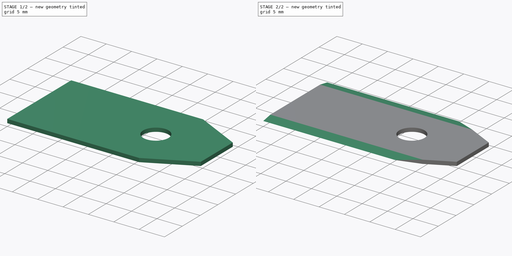
[diagram: build sequence overview — one tinted view per stage of 2, left to right]
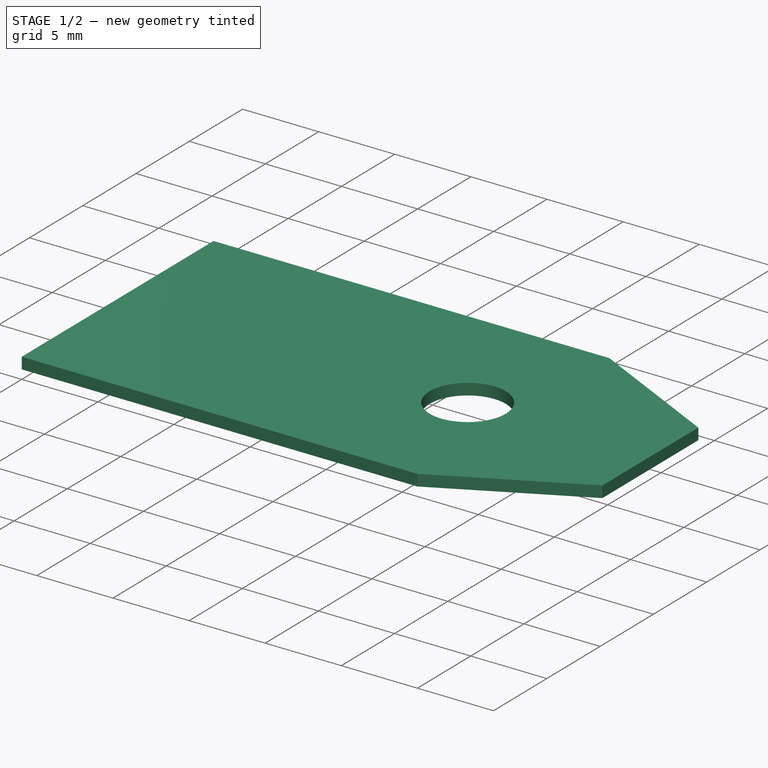
[diagram: stage 1 of 2 — iso view after this stage's code; geometry added in this stage tinted green]
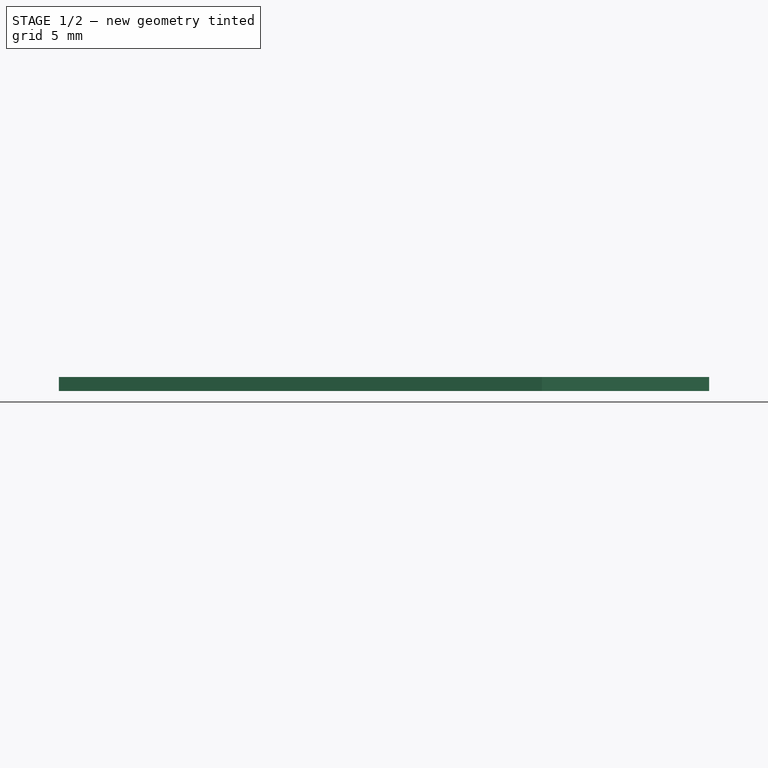
[diagram: stage 1 of 2 — front view after this stage's code; geometry added in this stage tinted green]
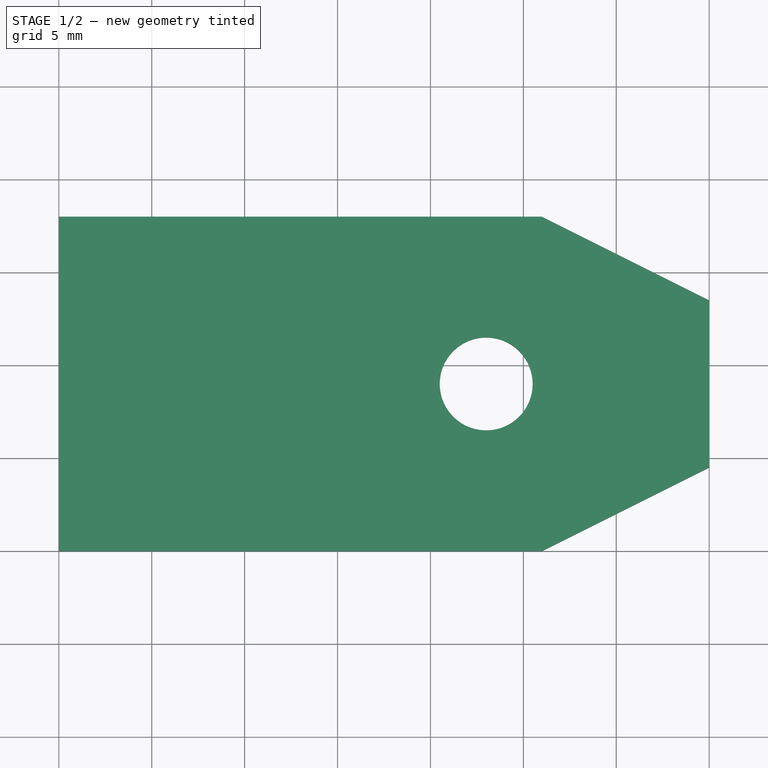
[diagram: stage 1 of 2 — top view after this stage's code; geometry added in this stage tinted green]
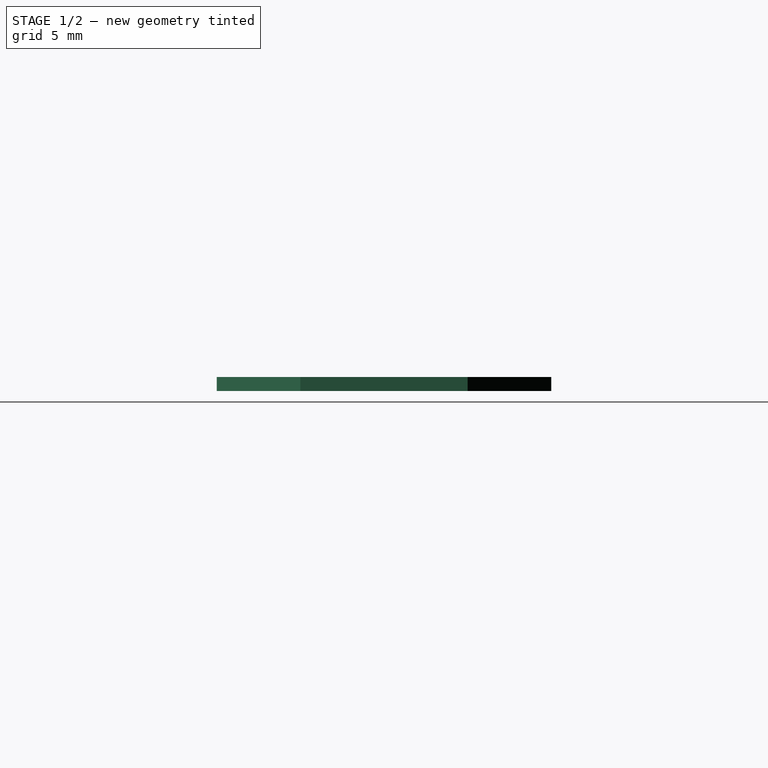
[diagram: stage 1 of 2 — right view after this stage's code; geometry added in this stage tinted green]
FCSTD DOCUMENT  (FreeCAD 1.1R1.1.0)
Label: Blades
License: All rights reserved
LicenseURL: http://en.wikipedia.org/wiki/All_rights_reserved
objects: Sketcher::SketchObject×3, PartDesign::Pocket×2, App::Point×1, PartDesign::Pad×1, PartDesign::Body×1
note: 16 computed .brp shape members not serialized (recipe doc carries the construction recipe); baked Part::Feature solids carry a one-line shape summary decoded from their .brp

FEATURE [App::Point] Origin001
  Role = Origin
FEATURE [Sketcher::SketchObject] Sketch  label="MainBladeShape_Sketch"
  ArcFitTolerance = 1e-06
  AttachmentSupport = -> [Origin]
  ExternalTypes = [0]
  FullyConstrained = true
  MakeInternals = false
  MapMode = 5
  Tolerance = 0
  _ExternalGeoVersion = 1
  expr: Constraints[11] = 18 mm + Tolerance
  expr: Constraints[12] = 35 mm + Tolerance
  expr: Constraints[13] = 26 mm + Tolerance
  expr: Constraints[15] = 9 mm + Tolerance
  expr: Constraints[16] = (18 mm + Tolerance - (9 mm + Tolerance)) / 2
  sketch-geometry (6):
    g0: LineSegment StartX=0 StartY=0 StartZ=0 EndX=0 EndY=18 EndZ=0
    g1: LineSegment StartX=0 StartY=18 StartZ=0 EndX=26 EndY=18 EndZ=0
    g2: LineSegment StartX=26 StartY=18 StartZ=0 EndX=35 EndY=13.5 EndZ=0
    g3: LineSegment StartX=35 StartY=13.5 StartZ=0 EndX=35 EndY=4.5 EndZ=0
    g4: LineSegment StartX=35 StartY=4.5 StartZ=0 EndX=26 EndY=0 EndZ=0
    g5: LineSegment StartX=26 StartY=0 StartZ=0 EndX=0 EndY=0 EndZ=0
  constraints (17):
    c: Coincident(g-1,g0)
    c: PointOnObject(g0,g-2)
    c: Coincident(g0,g1)
    c: Horizontal(g1)
    c: Coincident(g1,g2)
    c: Coincident(g2,g3)
    c: Vertical(g3)
    c: Coincident(g3,g4)
    c: PointOnObject(g4,g-1)
    c: Coincident(g4,g5)
    c: Coincident(g5,g0)
    c: DistanceY(g0,g0) = 18
    c: DistanceX(g0,g2) = 35
    c: DistanceX(g1,g1) = 26
    c: Equal(g1,g5)
    c: DistanceY(g3,g3) = 9
    c: DistanceY(g0,g3) = 4.5
FEATURE [PartDesign::Pad] Pad
  Direction = (0,0,1)
  Length = 0.75
  Length2 = 10
  Profile = -> Sketch
  ReferenceAxis = -> Sketch [N_Axis]
  SideType = 0
  Suppressed = false
  Type = 0
  Type2 = 0
  expr: Length = 0.75 mm + <<MainBladeShape_Sketch>>.Tolerance
FEATURE [Sketcher::SketchObject] Sketch001
  ArcFitTolerance = 1e-06
  AttachmentSupport = -> [Pad]
  ExternalTypes = [0]
  FullyConstrained = true
  MakeInternals = false
  MapMode = 5
  Placement = pos=(0,0,0.75) rot=(0,0,1;0rad)
  _ExternalGeoVersion = 1
  expr: Constraints[2] = (18 mm + <<MainBladeShape_Sketch>>.Tolerance) / 2
  sketch-geometry (1):
    g0: Circle CenterX=23 CenterY=9 CenterZ=0 NormalX=0 NormalY=0 NormalZ=1 AngleXU=0 Radius=2.5
  constraints (3):
    c: Diameter(g0) = 5
    c: DistanceX(g-1,g0) = 23
    c: DistanceY(g-1,g0) = 9
FEATURE [PartDesign::Pocket] Pocket
  BaseFeature = -> Pad
  Direction = (0,0,-1)
  Length = 5
  Length2 = 5
  Profile = -> Sketch001
  ReferenceAxis = -> Sketch001 [N_Axis]
  SideType = 0
  Suppressed = false
  Type = 1
  Type2 = 0
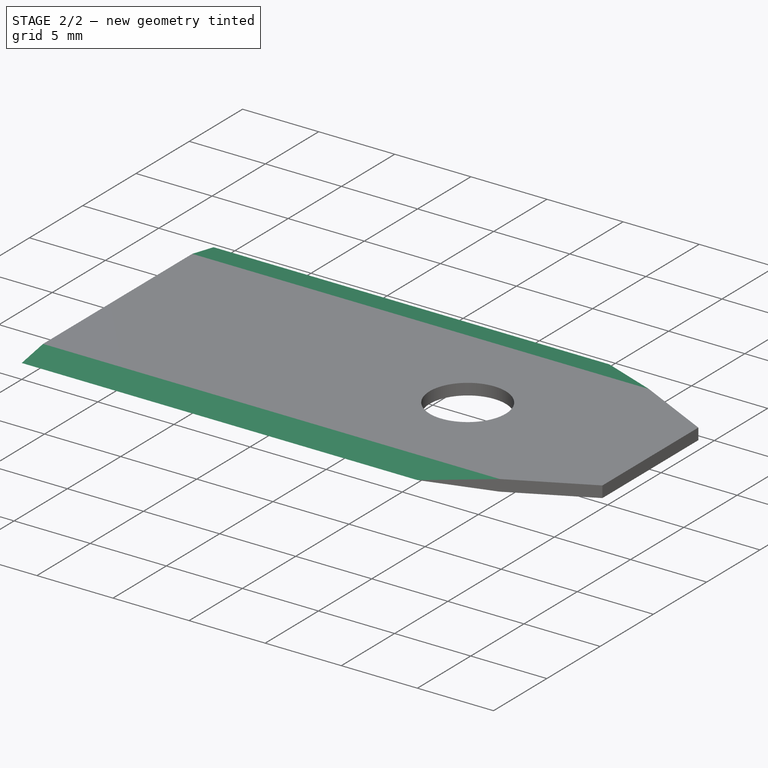
[diagram: stage 2 of 2 — iso view after this stage's code; geometry added in this stage tinted green]
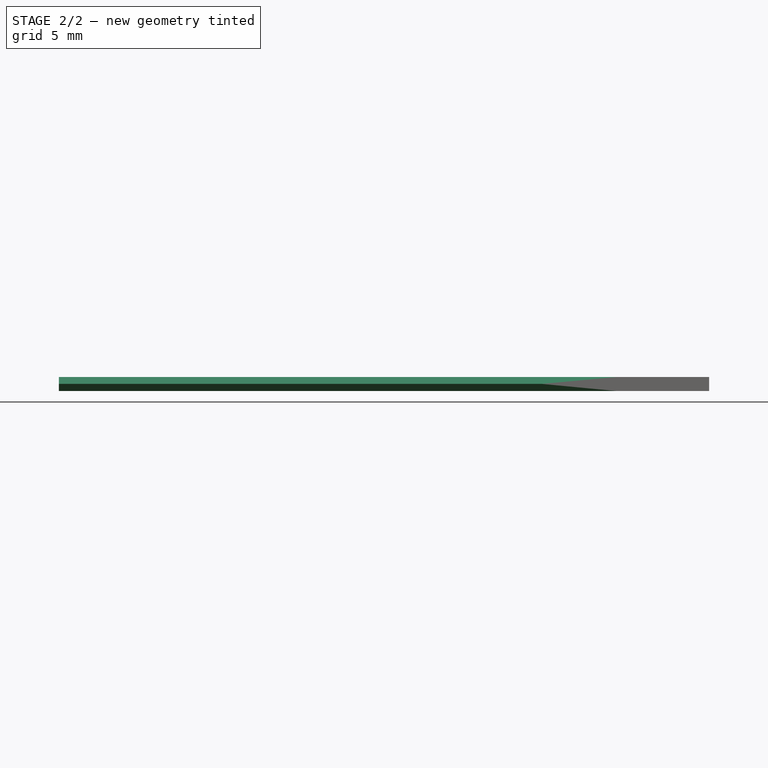
[diagram: stage 2 of 2 — front view after this stage's code; geometry added in this stage tinted green]
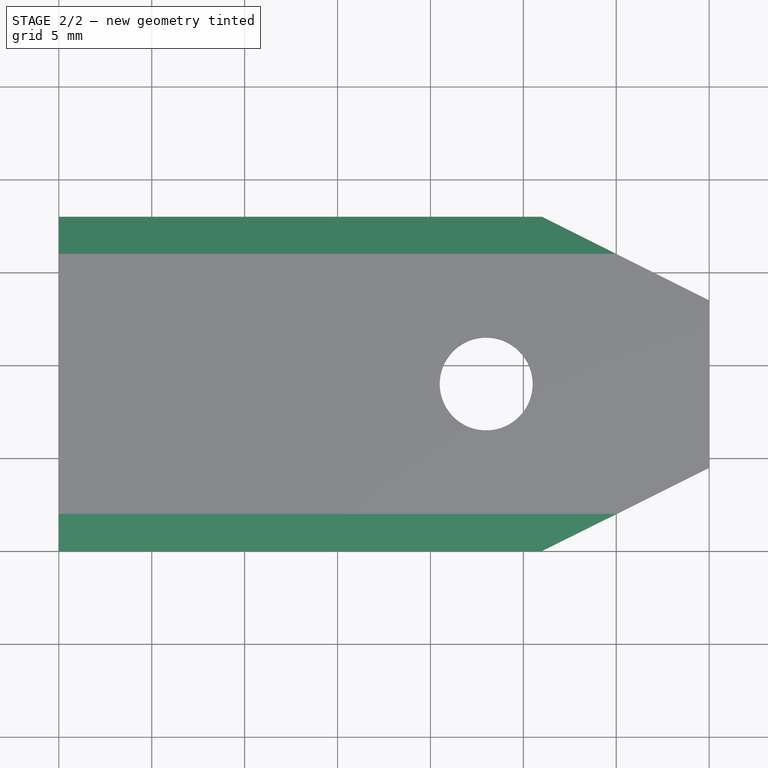
[diagram: stage 2 of 2 — top view after this stage's code; geometry added in this stage tinted green]
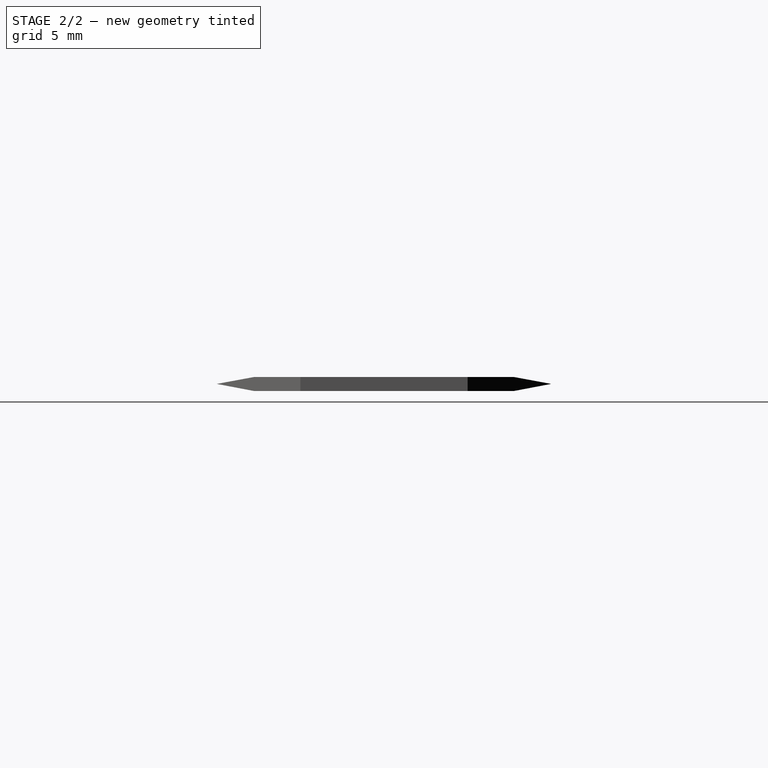
[diagram: stage 2 of 2 — right view after this stage's code; geometry added in this stage tinted green]
FEATURE [Sketcher::SketchObject] Sketch002  label="KnifeEdges"
  ArcFitTolerance = 1e-06
  AttachmentSupport = -> [Pocket]
  ExternalGeometry = -> [Pocket]
  ExternalTypes = [0,0]
  FullyConstrained = true
  MakeInternals = false
  MapMode = 5
  Placement = pos=(0,0,0) rot=(0.57735,-0.57735,-0.57735;2.0944rad)
  _ExternalGeoVersion = 1
  sketch-geometry (10):
    g0: LineSegment StartX=-2 StartY=0 StartZ=0 EndX=0 EndY=0.38 EndZ=0
    g1: LineSegment StartX=0 StartY=0.38 StartZ=0 EndX=-2 EndY=0.75 EndZ=0
    g2: LineSegment StartX=-2 StartY=0.75 StartZ=0 EndX=0 EndY=0.75 EndZ=0
    g3: LineSegment StartX=0 StartY=0.75 StartZ=0 EndX=0 EndY=0 EndZ=0
    g4: LineSegment StartX=-2 StartY=0 StartZ=0 EndX=0 EndY=0 EndZ=0
    g5: LineSegment StartX=-16 StartY=0.75 StartZ=0 EndX=-18 EndY=0.38 EndZ=0
    g6: LineSegment StartX=-18 StartY=0.38 StartZ=0 EndX=-16 EndY=0 EndZ=0
    g7: LineSegment StartX=-16 StartY=0 StartZ=0 EndX=-18 EndY=0 EndZ=0
    g8: LineSegment StartX=-18 StartY=0 StartZ=0 EndX=-18 EndY=0.75 EndZ=0
    g9: LineSegment StartX=-18 StartY=0.75 StartZ=0 EndX=-16 EndY=0.75 EndZ=0
  constraints (26):
    c: PointOnObject(g0,g-1)
    c: PointOnObject(g0,g-2)
    c: Coincident(g0,g1)
    c: PointOnObject(g1,g-3)
    c: Coincident(g1,g2)
    c: Coincident(g2,g-3)
    c: Coincident(g2,g3)
    c: Coincident(g3,g-1)
    c: DistanceX(g2,g2) = 2
    c: Coincident(g0,g4)
    c: Coincident(g4,g3)
    c: Equal(g4,g2)
    c: DistanceY(g3,g0) = 0.38
    c: PointOnObject(g5,g-3)
    c: Coincident(g5,g6)
    c: PointOnObject(g6,g-1)
    c: Coincident(g6,g7)
    c: Coincident(g7,g-4)
    c: Coincident(g7,g8)
    c: Coincident(g8,g-4)
    c: DistanceX(g7,g7) = 2
    c: Coincident(g8,g9)
    c: Coincident(g9,g5)
    c: Equal(g9,g7)
    c: DistanceY(g7,g5) = 0.38
    c: PointOnObject(g5,g8)
FEATURE [PartDesign::Pocket] Pocket001
  BaseFeature = -> Pocket
  Direction = (1,0,0)
  Length = 5
  Length2 = 5
  Profile = -> Sketch002
  ReferenceAxis = -> Sketch002 [N_Axis]
  SideType = 0
  Suppressed = false
  Type = 1
  Type2 = 0
FEATURE [PartDesign::Body] Body  label="Blade"
  AllowCompound = false
  Group = -> [Sketch,Pad,Sketch001,Pocket,Sketch002,Pocket001]
  Origin = -> Origin
  Tip = -> Pocket001
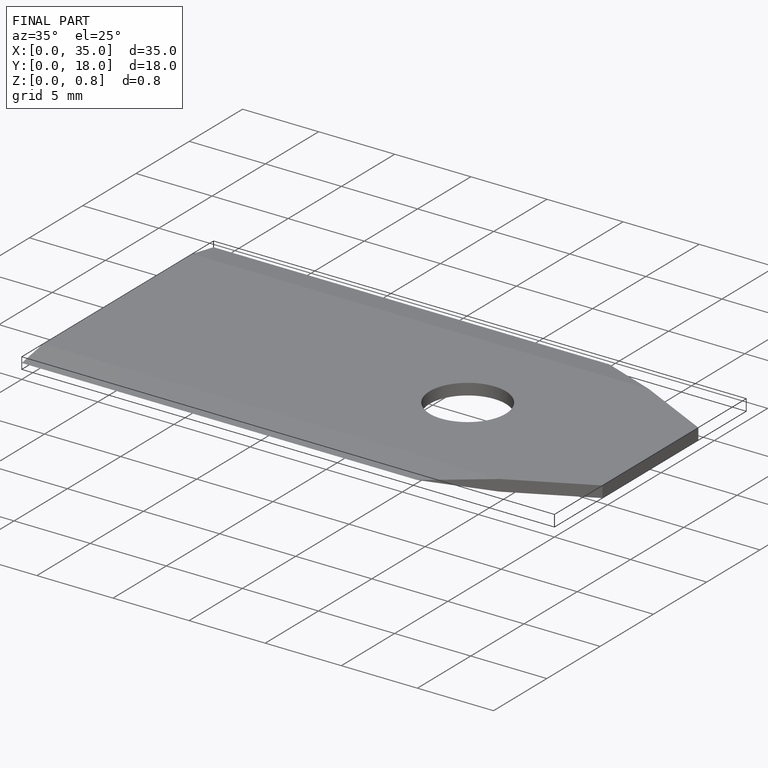
[diagram: finished part — iso view with bounding-box wireframe]
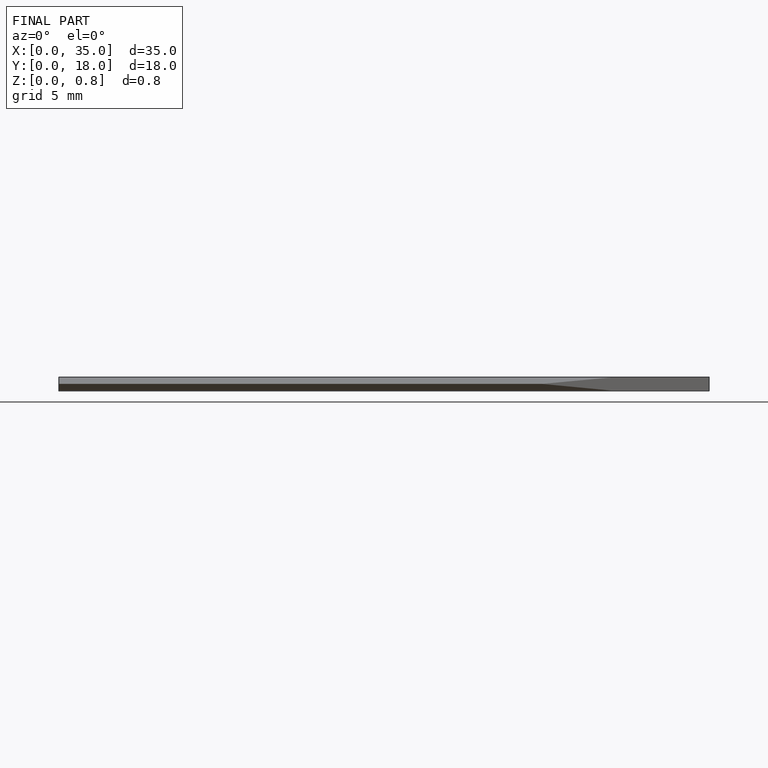
[diagram: finished part — front view with bounding-box wireframe]
